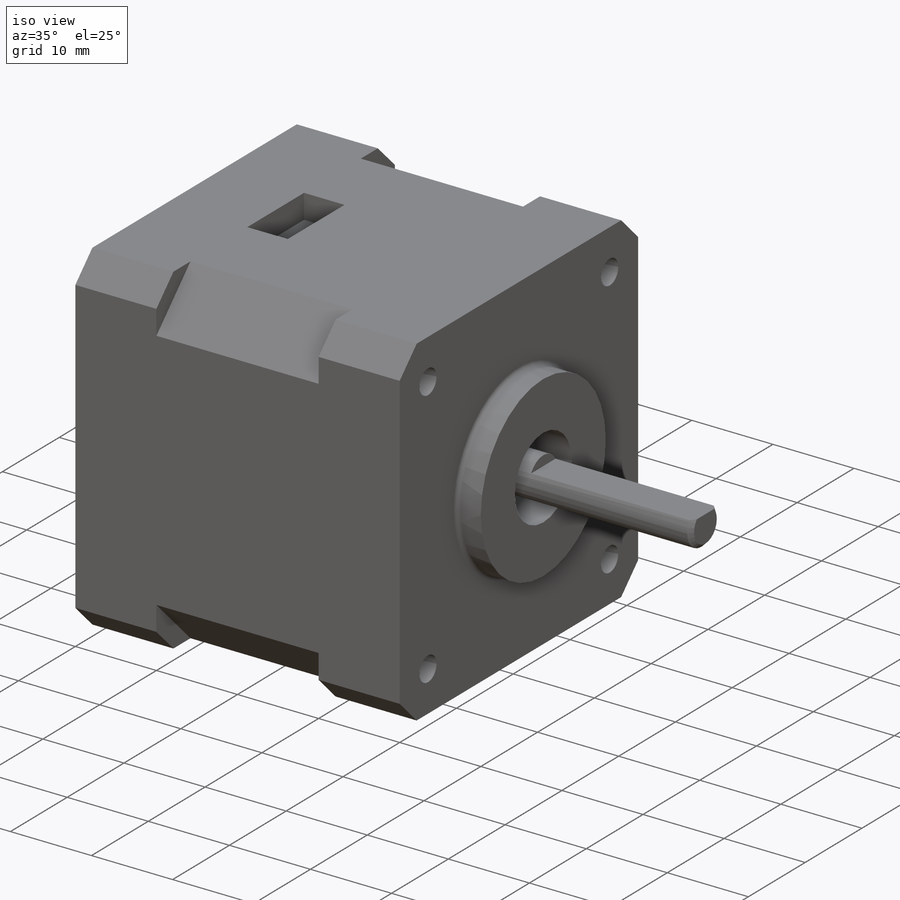
[diagram: iso view]
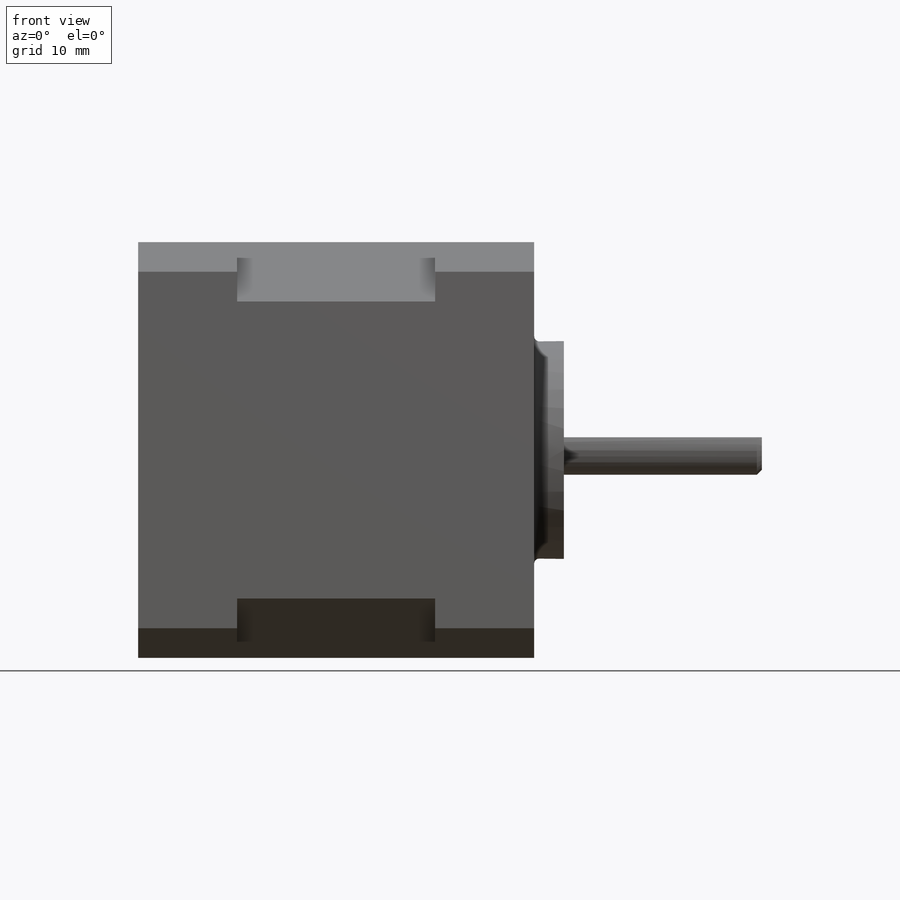
[diagram: front view]
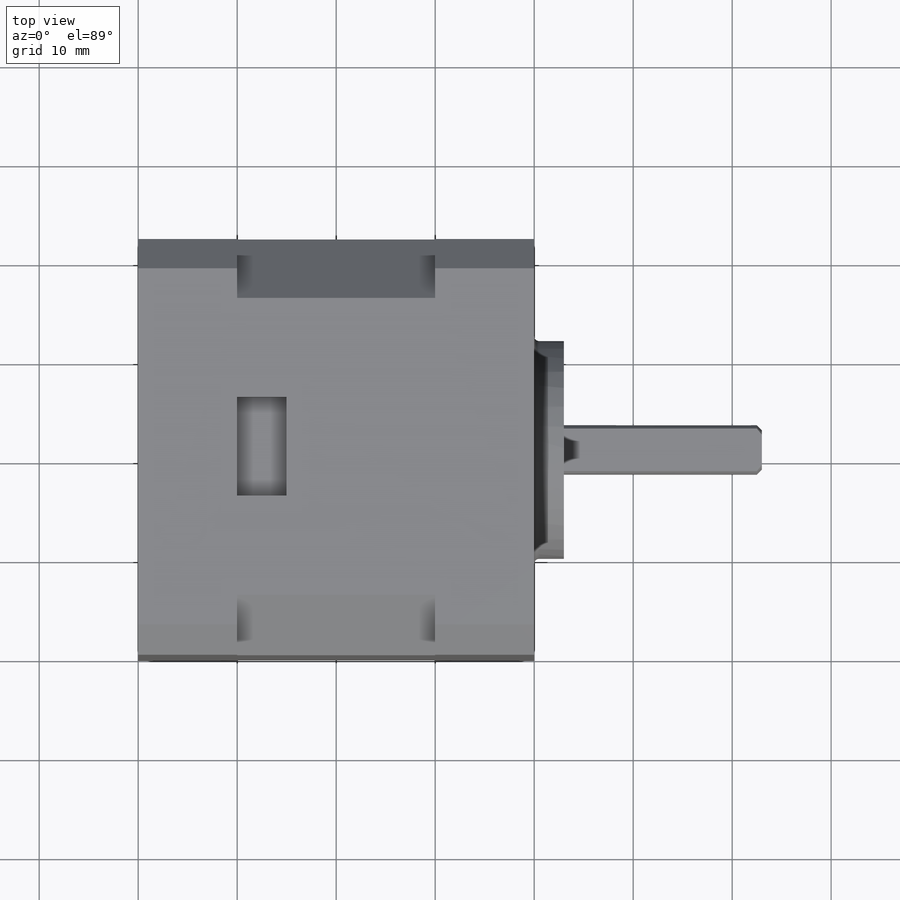
[diagram: top view]
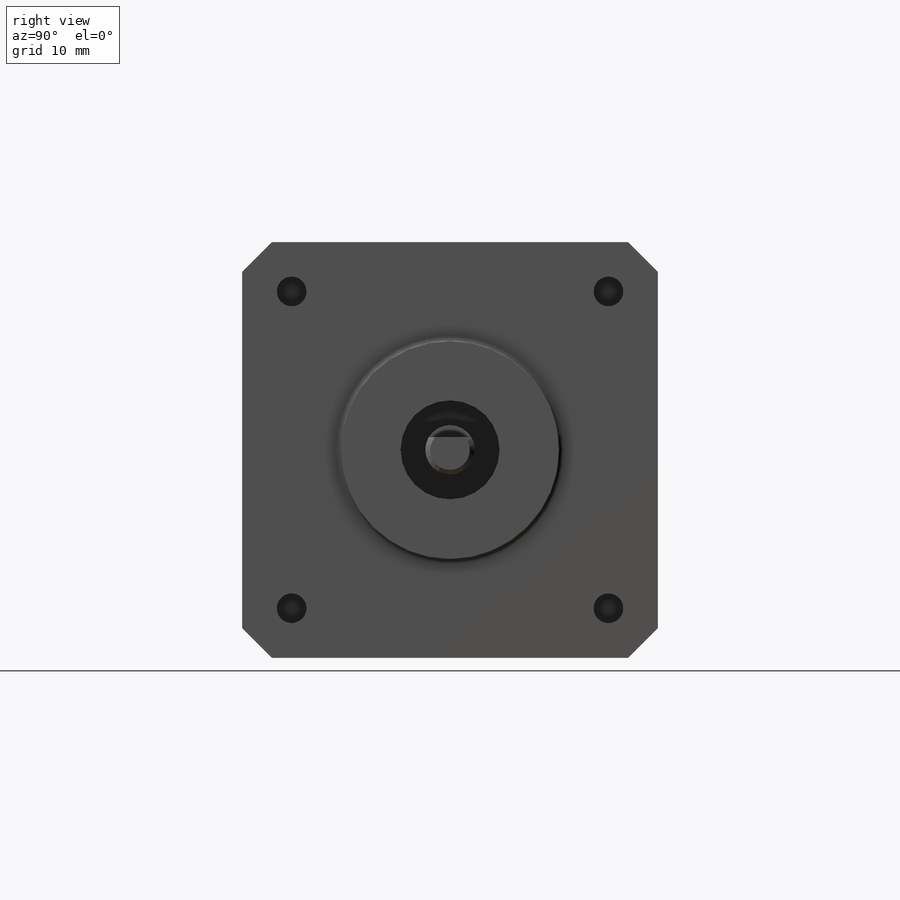
[diagram: right view]
SOLIDWORKS PART (.sldprt)
format: sldprt  version: not decoded by parser v0  size: 402,432 bytes
history: native  units: mm
features: sketch x10, extrude x5, cut_extrude x5, plane x3, material x1, fillet x1, chamfer x1 (+9 scaffold rows collapsed)
feature tree (35):
  scaffold x9  (default folders/planes/origin — collapsed)
  material  "Matériau <non spécifié>"
  plane  "Plan de face"
  plane  "Plan de dessus"
  plane  "Plan de droite"
  sketch  "Esquisse1"  dims[c1.D1=~48.390754mm c1.D2=~51.19022mm c2.D1=42.0mm c2.D2=15.0mm c2.D3=15.0mm c3.D1=30.0mm]
  extrude  "Boss.-Extru.1"  Depth=20mm
  sketch  "Esquisse2"  dims[D1=42.0mm D2=~43.567405mm]
  extrude  "Boss.-Extru.2"  Depth=10mm
  sketch  "Esquisse3"  dims[D1=~43.740396mm D2=~44.143799mm]
  extrude  "Boss.-Extru.3"  Depth=10mm
  sketch  "Esquisse4"  dims[D1=42.0mm]
  extrude  "Boss.-Extru.4"  Depth=3mm
  fillet  "Congé1"  Radius=0.5mm
  sketch  "Esquisse5"  dims[D1=10.0mm]
  cut_extrude  "Enlèv. mat.-Extru.1"  Depth=10mm
  sketch  "Esquisse6"  dims[D1=5.0mm]
  extrude  "Boss.-Extru.5"  Depth=30mm
  sketch  "Esquisse7"  dims[D1=~4.292716mm]
  cut_extrude  "Enlèv. mat.-Extru.2"  Depth=20mm
  chamfer  "Chanfrein1"  Distance=0.5mm Angle=45deg
  sketch  "Esquisse8"  dims[c1.D1=~4.178002mm c1.D3=3.0mm c2.D1=5.0mm c2.D2=5.0mm]
  cut_extrude  "Enlèv. mat.-Extru.3"  Depth=5mm
  sketch  "Esquisse9"  dims[D1=3.0mm D2=3.0mm D3=3.0mm]
  cut_extrude  "Enlèv. mat.-Extru.5"  [1 undecoded]
  sketch  "Esquisse11"  dims[c1.D1=~11.489096mm c1.D2=~3.540245mm c2.D1=5.0mm c2.D2=10.0mm]
  cut_extrude  "Enlèv. mat.-Extru.6"  Depth=3mm
decode coverage: 21 of 22 modeling features carry decoded parameters
note: ~ marks probable driven/reference dimensions
note: 1 parameter value undecoded
note: suppression state not decoded; provenance and decode notes live in map.json
